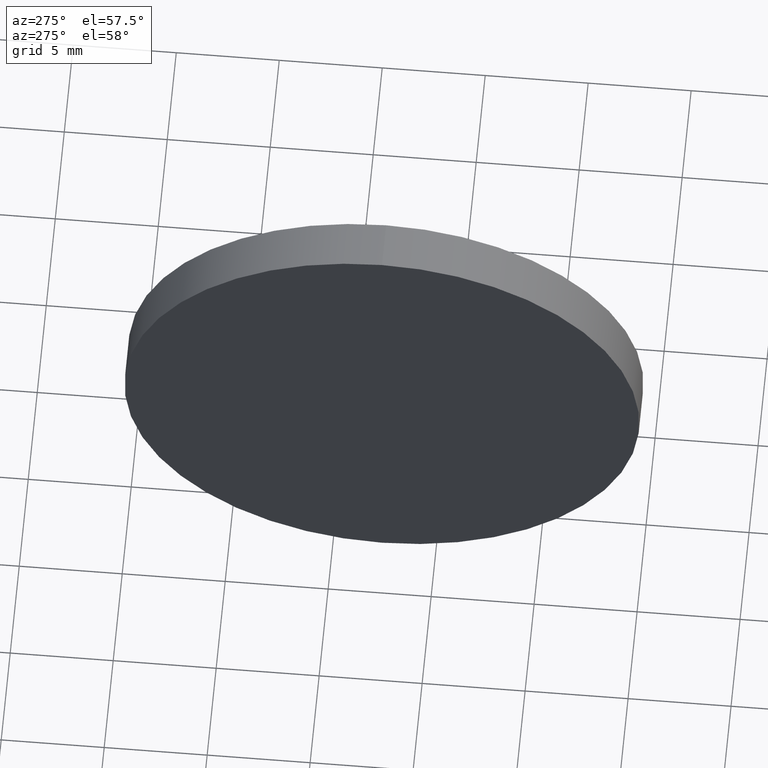
[diagram: clean part render]
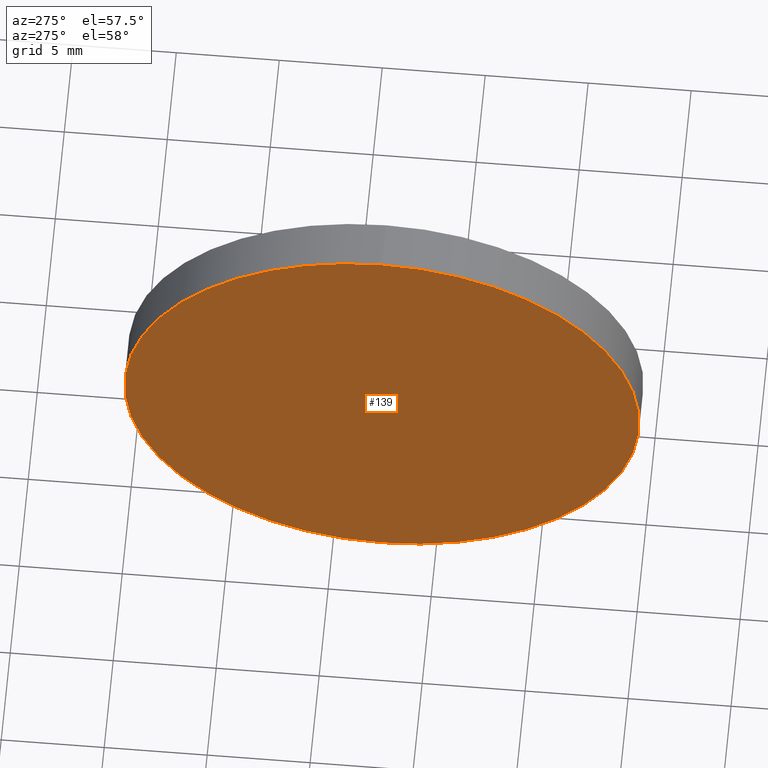
[diagram: same view with one face highlighted and labeled with its STEP entity id]
A machine part, auxiliary view. The second image highlights one B-rep face of the part: STEP entity #139.
In plain terms, the highlighted planar face has unit normal (1, 0, 0).
Its self-contained STEP definition (entity closure, byte-faithful):
#3 = DIRECTION ( 'NONE',  ( -1.000000000000000000, -0.0000000000000000000, -0.0000000000000000000 ) ) ;
#11 = CIRCLE ( 'NONE', #154, 12.49999999999999600 ) ;
#15 = DIRECTION ( 'NONE',  ( -1.000000000000000000, -0.0000000000000000000, -0.0000000000000000000 ) ) ;
#16 = VERTEX_POINT ( 'NONE', #114 ) ;
#29 = CARTESIAN_POINT ( 'NONE',  ( 57.53233705252611700, 32.61076812922678400, 0.0000000000000000000 ) ) ;
#41 = PLANE ( 'NONE',  #92 ) ;
#55 = ORIENTED_EDGE ( 'NONE', *, *, #125, .T. ) ;
#61 = EDGE_LOOP ( 'NONE', ( #55, #126 ) ) ;
#67 = EDGE_CURVE ( 'NONE', #16, #127, #11, .T. ) ;
#90 = AXIS2_PLACEMENT_3D ( 'NONE', #91, #15, #108 ) ;
#91 = CARTESIAN_POINT ( 'NONE',  ( 57.53233705252611700, 32.61076812922678400, 0.0000000000000000000 ) ) ;
#92 = AXIS2_PLACEMENT_3D ( 'NONE', #29, #109, #143 ) ;
#107 = FACE_OUTER_BOUND ( 'NONE', #61, .T. ) ;
#108 = DIRECTION ( 'NONE',  ( 0.0000000000000000000, 0.0000000000000000000, 1.000000000000000000 ) ) ;
#109 = DIRECTION ( 'NONE',  ( 1.000000000000000000, 0.0000000000000000000, 0.0000000000000000000 ) ) ;
#111 = CARTESIAN_POINT ( 'NONE',  ( 57.53233705252611700, 32.61076812922678400, 0.0000000000000000000 ) ) ;
#114 = CARTESIAN_POINT ( 'NONE',  ( 57.53233705252611700, 32.61076812922678400, -12.49999999999999600 ) ) ;
#125 = EDGE_CURVE ( 'NONE', #127, #16, #135, .T. ) ;
#126 = ORIENTED_EDGE ( 'NONE', *, *, #67, .T. ) ;
#127 = VERTEX_POINT ( 'NONE', #156 ) ;
#135 = CIRCLE ( 'NONE', #90, 12.49999999999999600 ) ;
#139 = ADVANCED_FACE ( 'NONE', ( #107 ), #41, .F. ) ;
#143 = DIRECTION ( 'NONE',  ( 0.0000000000000000000, 0.0000000000000000000, -1.000000000000000000 ) ) ;
#146 = DIRECTION ( 'NONE',  ( 0.0000000000000000000, 0.0000000000000000000, 1.000000000000000000 ) ) ;
#154 = AXIS2_PLACEMENT_3D ( 'NONE', #111, #3, #146 ) ;
#156 = CARTESIAN_POINT ( 'NONE',  ( 57.53233705252611700, 32.61076812922678400, 12.49999999999999600 ) ) ;